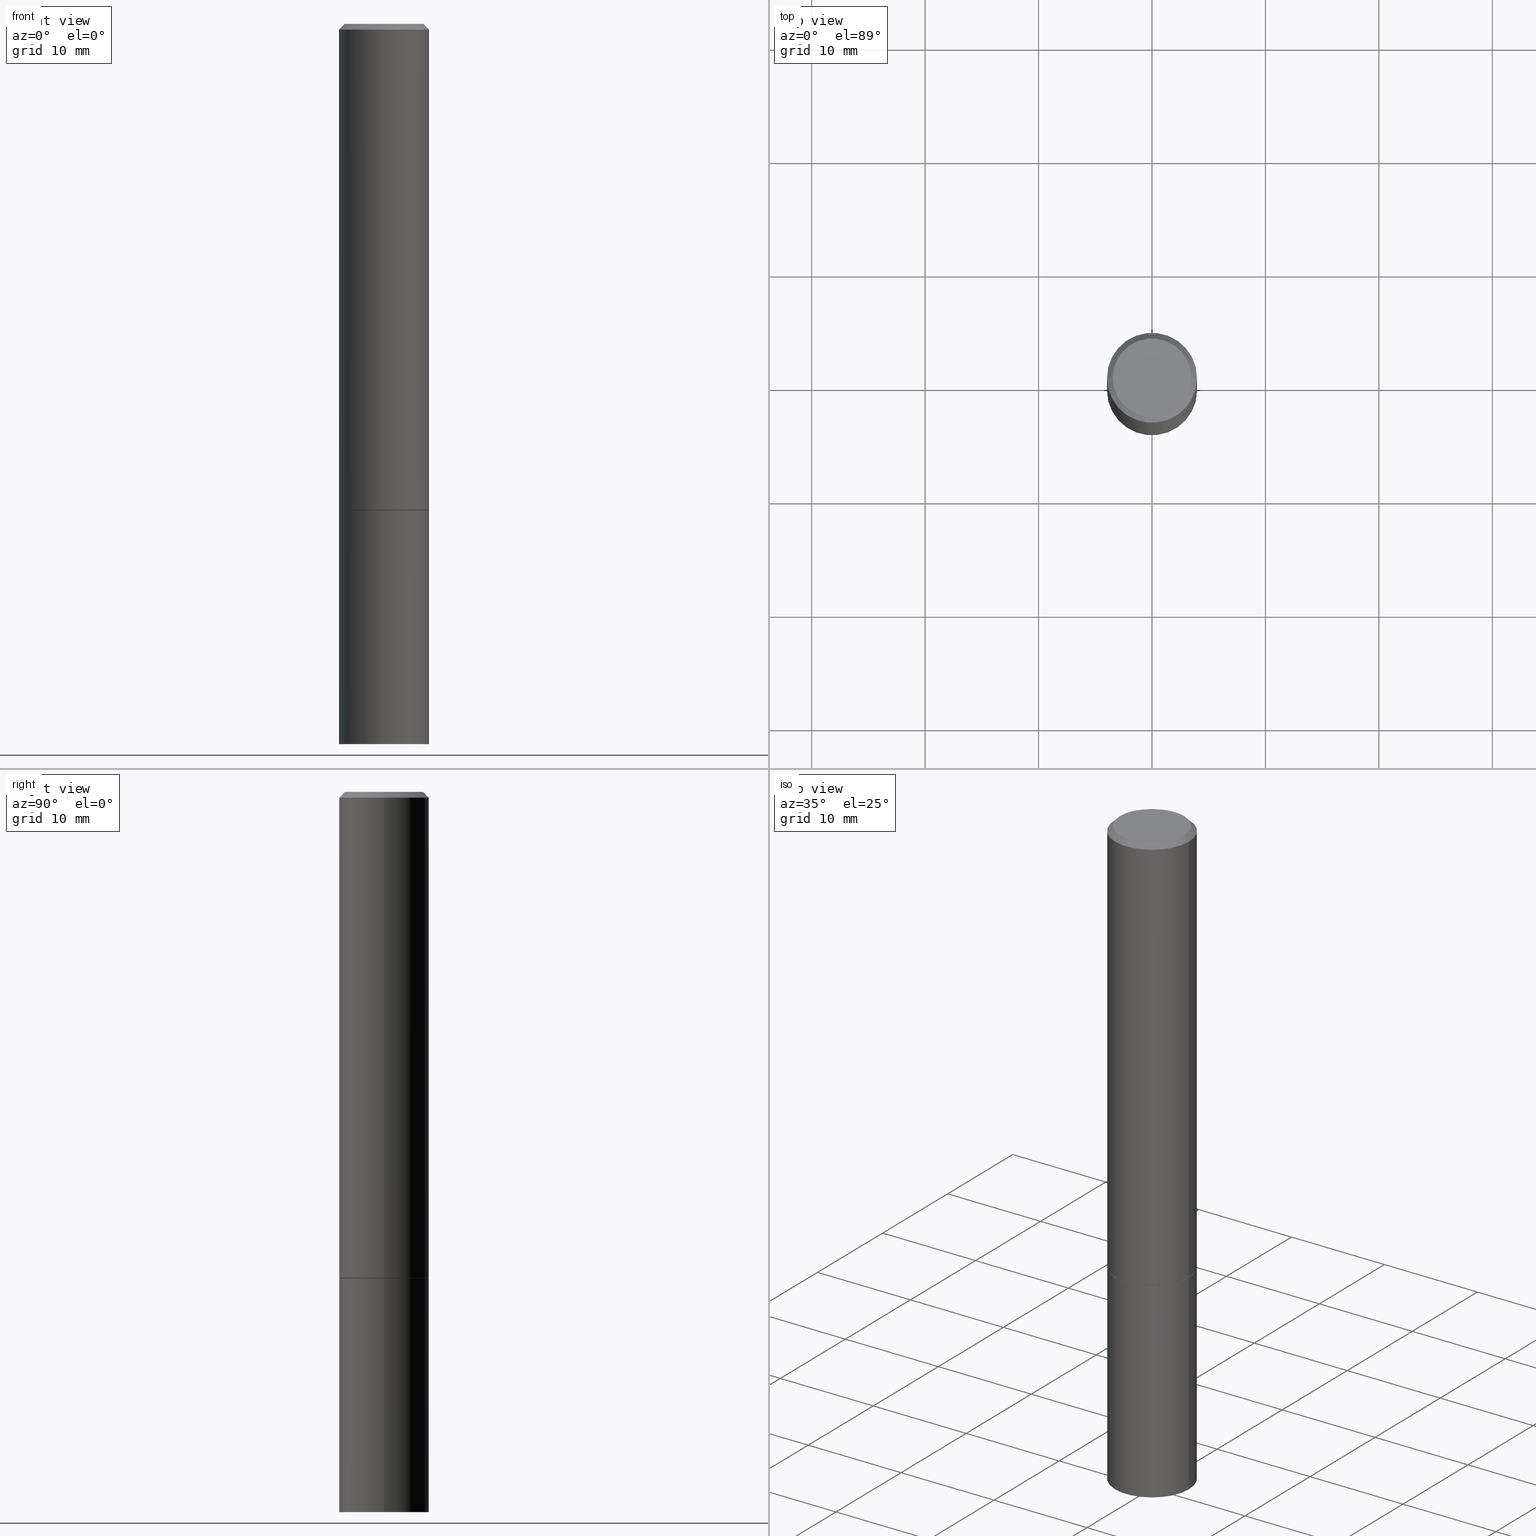
[diagram: canonical four-view strip — front | top / right | iso, engineering-drawing reading convention]
A machine part, canonical four-view strip (front | top / right | iso — engineering-drawing reading convention). The complete STEP part file that produces these views, byte-faithful:
ISO-10303-21;
HEADER;
FILE_DESCRIPTION (( 'STEP AP203' ),
    '1' );
FILE_NAME ('91284.STEP',
    '2024-03-01T04:50:10',
    ( '' ),
    ( '' ),
    'SwSTEP 2.0',
    'SolidWorks 2023',
    '' );
FILE_SCHEMA (( 'CONFIG_CONTROL_DESIGN' ));
ENDSEC;

DATA;
#1 = APPROVAL_ROLE ( '' ) ;
#2 = VECTOR ( 'NONE', #53, 39.37007874015748854 ) ;
#3 = DIRECTION ( 'NONE',  ( 0.000000000000000000, 0.000000000000000000, 1.000000000000000000 ) ) ;
#4 =( NAMED_UNIT ( * ) SI_UNIT ( $, .STERADIAN. ) SOLID_ANGLE_UNIT ( ) );
#5 = FACE_OUTER_BOUND ( 'NONE', #273, .T. ) ;
#6 = DIRECTION ( 'NONE',  ( -2.445468806185136597E-29, 3.491481338843145583E-15, 1.000000000000000000 ) ) ;
#7 = ORIENTED_EDGE ( 'NONE', *, *, #207, .F. ) ;
#8 = PRODUCT_DEFINITION ( 'UNKNOWN', '', #352, #78 ) ;
#9 = DIRECTION ( 'NONE',  ( -2.445468806185136597E-29, 3.491481338843145583E-15, 1.000000000000000000 ) ) ;
#10 = CARTESIAN_POINT ( 'NONE',  ( -0.1562500000000000000, -6.200938898912389918E-15, -2.500000000000000000 ) ) ;
#11 = AXIS2_PLACEMENT_3D ( 'NONE', #106, #108, #259 ) ;
#12 = DIRECTION ( 'NONE',  ( 1.000000000000000000, -6.982962677686268288E-15, 0.000000000000000000 ) ) ;
#13 = VERTEX_POINT ( 'NONE', #21 ) ;
#14 = CARTESIAN_POINT ( 'NONE',  ( 0.1552499999999999991, -6.977725455678023499E-15, -1.688000000000000167 ) ) ;
#15 = ORIENTED_EDGE ( 'NONE', *, *, #232, .F. ) ;
#16 = CYLINDRICAL_SURFACE ( 'NONE', #57, 0.1562499999999999445 ) ;
#17 = AXIS2_PLACEMENT_3D ( 'NONE', #73, #187, #119 ) ;
#18 = AXIS2_PLACEMENT_3D ( 'NONE', #309, #100, #52 ) ;
#19 = ORIENTED_EDGE ( 'NONE', *, *, #311, .T. ) ;
#20 = DIRECTION ( 'NONE',  ( -2.445468806185136597E-29, 3.491481338843145583E-15, 1.000000000000000000 ) ) ;
#21 = CARTESIAN_POINT ( 'NONE',  ( -0.1552499999999999991, -4.785204448351452406E-15, -1.688000000000000167 ) ) ;
#22 = ADVANCED_FACE ( 'NONE', ( #44 ), #329, .T. ) ;
#23 = DIRECTION ( 'NONE',  ( 1.000000000000000000, -6.982962677686265133E-15, 0.000000000000000000 ) ) ;
#24 = AXIS2_PLACEMENT_3D ( 'NONE', #362, #332, #274 ) ;
#25 = PERSON_AND_ORGANIZATION_ROLE ( 'creator' ) ;
#26 = APPROVAL_ROLE ( '' ) ;
#27 = PERSON_AND_ORGANIZATION ( #215, #320 ) ;
#28 = CC_DESIGN_APPROVAL ( #172, ( #352 ) ) ;
#29 =( CONVERSION_BASED_UNIT ( 'INCH', #261 ) LENGTH_UNIT ( ) NAMED_UNIT ( #143 ) );
#30 = EDGE_CURVE ( 'NONE', #277, #213, #68, .T. ) ;
#31 = PERSON_AND_ORGANIZATION ( #215, #320 ) ;
#32 = EDGE_LOOP ( 'NONE', ( #71, #185 ) ) ;
#33 = VECTOR ( 'NONE', #321, 39.37007874015748143 ) ;
#34 = PLANE ( 'NONE',  #86 ) ;
#35 = VERTEX_POINT ( 'NONE', #42 ) ;
#36 = EDGE_CURVE ( 'NONE', #148, #159, #39, .T. ) ;
#37 = DIRECTION ( 'NONE',  ( -2.445468806185136597E-29, 3.491481338843145583E-15, 1.000000000000000000 ) ) ;
#38 = FACE_OUTER_BOUND ( 'NONE', #326, .T. ) ;
#39 = CIRCLE ( 'NONE', #335, 0.1562500000000000000 ) ;
#40 = ADVANCED_FACE ( 'NONE', ( #5 ), #239, .F. ) ;
#41 = AXIS2_PLACEMENT_3D ( 'NONE', #364, #72, #74 ) ;
#42 = CARTESIAN_POINT ( 'NONE',  ( -0.1562500000000000000, -1.869756298077466803E-15, -1.687000000000000055 ) ) ;
#43 = LOCAL_TIME ( 23, 50, 10.00000000000000000, #58 ) ;
#44 = FACE_OUTER_BOUND ( 'NONE', #162, .T. ) ;
#45 = CARTESIAN_POINT ( 'NONE',  ( 4.890937612370281041E-31, -6.982962677686302702E-17, -0.02000000000000003511 ) ) ;
#46 = EDGE_LOOP ( 'NONE', ( #127, #48, #157, #331 ) ) ;
#47 = DIRECTION ( 'NONE',  ( -2.445468806185136597E-29, 3.491481338843145583E-15, 1.000000000000000000 ) ) ;
#48 = ORIENTED_EDGE ( 'NONE', *, *, #238, .T. ) ;
#49 = FACE_OUTER_BOUND ( 'NONE', #359, .T. ) ;
#50 = AXIS2_PLACEMENT_3D ( 'NONE', #303, #47, #23 ) ;
#51 = EDGE_LOOP ( 'NONE', ( #300, #219 ) ) ;
#52 = DIRECTION ( 'NONE',  ( 1.000000000000000000, -6.982962677686266711E-15, 4.876176775795935232E-29 ) ) ;
#53 = DIRECTION ( 'NONE',  ( -0.7071067811865232589, 7.493145998870265808E-15, 0.7071067811865715536 ) ) ;
#54 = APPROVAL_STATUS ( 'not_yet_approved' ) ;
#55 = ADVANCED_FACE ( 'NONE', ( #38 ), #34, .F. ) ;
#56 = CIRCLE ( 'NONE', #166, 0.1562500000000000000 ) ;
#57 = AXIS2_PLACEMENT_3D ( 'NONE', #279, #20, #224 ) ;
#58 = COORDINATED_UNIVERSAL_TIME_OFFSET ( 5, 0, .BEHIND. ) ;
#59 = CALENDAR_DATE ( 2024, 29, 2 ) ;
#60 = PERSON_AND_ORGANIZATION_ROLE ( 'classification_officer' ) ;
#61 = AXIS2_PLACEMENT_3D ( 'NONE', #121, #240, #350 ) ;
#62 = CIRCLE ( 'NONE', #208, 0.1562500000000000000 ) ;
#63 = CARTESIAN_POINT ( 'NONE',  ( 0.1562499999999999445, -1.091087918388478779E-15, 7.619026212181146173E-30 ) ) ;
#64 = EDGE_CURVE ( 'NONE', #159, #148, #56, .T. ) ;
#65 = EDGE_LOOP ( 'NONE', ( #252, #349, #280, #254 ) ) ;
#66 = DIRECTION ( 'NONE',  ( -2.445468806185136597E-29, 3.491481338843145583E-15, 1.000000000000000000 ) ) ;
#67 = CARTESIAN_POINT ( 'NONE',  ( 4.127951344840510809E-29, -5.893620499967230340E-15, -1.688000000000000167 ) ) ;
#68 = LINE ( 'NONE', #236, #283 ) ;
#69 = CIRCLE ( 'NONE', #284, 0.1552499999999999991 ) ;
#70 = CARTESIAN_POINT ( 'NONE',  ( 6.113672015462842613E-29, -8.728703347107864943E-15, -2.500000000000000000 ) ) ;
#71 = ORIENTED_EDGE ( 'NONE', *, *, #207, .T. ) ;
#72 = DIRECTION ( 'NONE',  ( 2.445468806185136597E-29, -3.491481338843145583E-15, -1.000000000000000000 ) ) ;
#73 = CARTESIAN_POINT ( 'NONE',  ( 0.000000000000000000, 0.000000000000000000, 0.000000000000000000 ) ) ;
#74 = DIRECTION ( 'NONE',  ( -1.000000000000000000, 6.982962677686267499E-15, 0.000000000000000000 ) ) ;
#75 = EDGE_CURVE ( 'NONE', #155, #131, #129, .T. ) ;
#76 = ORIENTED_EDGE ( 'NONE', *, *, #197, .T. ) ;
#77 = FACE_OUTER_BOUND ( 'NONE', #307, .T. ) ;
#78 = DESIGN_CONTEXT ( 'detailed design', #241, 'design' ) ;
#79 = VECTOR ( 'NONE', #272, 39.37007874015748143 ) ;
#80 = ORIENTED_EDGE ( 'NONE', *, *, #136, .F. ) ;
#81 = PLANE ( 'NONE',  #24 ) ;
#82 = APPROVAL_DATE_TIME ( #291, #172 ) ;
#83 = CALENDAR_DATE ( 2024, 29, 2 ) ;
#84 = EDGE_CURVE ( 'NONE', #35, #302, #243, .T. ) ;
#85 = CALENDAR_DATE ( 2024, 29, 2 ) ;
#86 = AXIS2_PLACEMENT_3D ( 'NONE', #301, #124, #212 ) ;
#87 = VECTOR ( 'NONE', #130, 39.37007874015748854 ) ;
#88 = PERSON_AND_ORGANIZATION ( #215, #320 ) ;
#89 = VERTEX_POINT ( 'NONE', #184 ) ;
#90 = CC_DESIGN_PERSON_AND_ORGANIZATION_ASSIGNMENT ( #313, #60, ( #290 ) ) ;
#91 = CARTESIAN_POINT ( 'NONE',  ( 0.000000000000000000, 0.000000000000000000, 0.000000000000000000 ) ) ;
#92 = CARTESIAN_POINT ( 'NONE',  ( 4.125505876034325766E-29, -5.890129018628387333E-15, -1.687000000000000055 ) ) ;
#93 = LOCAL_TIME ( 23, 50, 10.00000000000000000, #140 ) ;
#94 = LINE ( 'NONE', #323, #202 ) ;
#95 = CC_DESIGN_DATE_AND_TIME_ASSIGNMENT ( #344, #169, ( #290 ) ) ;
#96 = CARTESIAN_POINT ( 'NONE',  ( 0.000000000000000000, 0.000000000000000000, 0.000000000000000000 ) ) ;
#97 = CARTESIAN_POINT ( 'NONE',  ( 0.1562499999999998335, -1.141782438928663724E-15, -0.02000000000000003511 ) ) ;
#98 = ORIENTED_EDGE ( 'NONE', *, *, #64, .T. ) ;
#99 = AXIS2_PLACEMENT_3D ( 'NONE', #126, #281, #135 ) ;
#100 = DIRECTION ( 'NONE',  ( -2.445468806185136597E-29, 3.491481338843145583E-15, 1.000000000000000000 ) ) ;
#101 = ORIENTED_EDGE ( 'NONE', *, *, #304, .T. ) ;
#102 = CARTESIAN_POINT ( 'NONE',  ( 1.091087918388520392E-15, 0.1562499999999940881, -1.688000000000000611 ) ) ;
#103 = ORIENTED_EDGE ( 'NONE', *, *, #84, .T. ) ;
#104 = PLANE ( 'NONE',  #138 ) ;
#105 = ORIENTED_EDGE ( 'NONE', *, *, #150, .T. ) ;
#106 = CARTESIAN_POINT ( 'NONE',  ( 4.125505876034325766E-29, -5.890129018628387333E-15, -1.687000000000000055 ) ) ;
#107 = APPROVAL_PERSON_ORGANIZATION ( #116, #172, #229 ) ;
#108 = DIRECTION ( 'NONE',  ( -2.445468806185136597E-29, 3.491481338843145583E-15, 1.000000000000000000 ) ) ;
#109 = PERSON_AND_ORGANIZATION ( #215, #320 ) ;
#110 = MANIFOLD_SOLID_BREP ( 'Body-Move/Copy2[1]', #190 ) ;
#111 = PERSON_AND_ORGANIZATION_ROLE ( 'design_owner' ) ;
#112 = CIRCLE ( 'NONE', #11, 0.1562500000000000000 ) ;
#113 = MECHANICAL_CONTEXT ( 'NONE', #327, 'mechanical' ) ;
#114 = APPROVAL ( #54, 'UNSPECIFIED' ) ;
#115 = PRODUCT ( '91284', '91284', '', ( #113 ) ) ;
#116 = PERSON_AND_ORGANIZATION ( #215, #320 ) ;
#117 = SECURITY_CLASSIFICATION_LEVEL ( 'unclassified' ) ;
#118 = CC_DESIGN_PERSON_AND_ORGANIZATION_ASSIGNMENT ( #201, #316, ( #352 ) ) ;
#119 = DIRECTION ( 'NONE',  ( 1.000000000000000000, -6.982962677686266711E-15, 4.876176775795935232E-29 ) ) ;
#120 = CARTESIAN_POINT ( 'NONE',  ( 4.127951344840510809E-29, -5.893620499967230340E-15, -1.688000000000000167 ) ) ;
#121 = CARTESIAN_POINT ( 'NONE',  ( 4.127951344840510809E-29, -5.893620499967230340E-15, -1.688000000000000167 ) ) ;
#122 = AXIS2_PLACEMENT_3D ( 'NONE', #92, #147, #206 ) ;
#123 = DIRECTION ( 'NONE',  ( -2.445468806185136877E-29, 3.491481338843145188E-15, 1.000000000000000000 ) ) ;
#124 = DIRECTION ( 'NONE',  ( -2.438088387897960049E-29, 3.491481338843145188E-15, 1.000000000000000000 ) ) ;
#125 = ORIENTED_EDGE ( 'NONE', *, *, #211, .T. ) ;
#126 = CARTESIAN_POINT ( 'NONE',  ( 4.127951344840510809E-29, -5.893620499967230340E-15, -1.688000000000000167 ) ) ;
#127 = ORIENTED_EDGE ( 'NONE', *, *, #232, .T. ) ;
#128 = EDGE_CURVE ( 'NONE', #277, #247, #289, .T. ) ;
#129 = CIRCLE ( 'NONE', #230, 0.1562500000000000000 ) ;
#130 = DIRECTION ( 'NONE',  ( 0.7071067811865232589, -2.468850131082003836E-15, 0.7071067811865715536 ) ) ;
#131 = VERTEX_POINT ( 'NONE', #180 ) ;
#132 = DIRECTION ( 'NONE',  ( 1.000000000000000000, -6.982962677686266711E-15, 4.876176775795936353E-29 ) ) ;
#133 = UNCERTAINTY_MEASURE_WITH_UNIT (LENGTH_MEASURE( 1.000000000000000082E-05 ), #29, 'distance_accuracy_value', 'NONE');
#134 = ORIENTED_EDGE ( 'NONE', *, *, #30, .F. ) ;
#135 = DIRECTION ( 'NONE',  ( 1.000000000000000000, -6.982962677686268288E-15, 0.000000000000000000 ) ) ;
#136 = EDGE_CURVE ( 'NONE', #159, #155, #204, .T. ) ;
#137 = DIRECTION ( 'NONE',  ( -1.000000000000000000, 6.982962677686265922E-15, -4.876176775795935793E-29 ) ) ;
#138 = AXIS2_PLACEMENT_3D ( 'NONE', #102, #216, #137 ) ;
#139 = EDGE_CURVE ( 'NONE', #302, #89, #246, .T. ) ;
#140 = COORDINATED_UNIVERSAL_TIME_OFFSET ( 5, 0, .BEHIND. ) ;
#141 = LOCAL_TIME ( 23, 50, 10.00000000000000000, #286 ) ;
#142 = DATE_AND_TIME ( #59, #285 ) ;
#143 = DIMENSIONAL_EXPONENTS ( 1.000000000000000000, 0.000000000000000000, 0.000000000000000000, 0.000000000000000000, 0.000000000000000000, 0.000000000000000000, 0.000000000000000000 ) ;
#144 = DATE_TIME_ROLE ( 'creation_date' ) ;
#145 = DIRECTION ( 'NONE',  ( -0.7071067811865467956, 2.468850131082249172E-15, -0.7071067811865482389 ) ) ;
#146 = AXIS2_PLACEMENT_3D ( 'NONE', #167, #3, #340 ) ;
#147 = DIRECTION ( 'NONE',  ( -2.445468806185136597E-29, 3.491481338843145583E-15, 1.000000000000000000 ) ) ;
#148 = VERTEX_POINT ( 'NONE', #270 ) ;
#149 = DIRECTION ( 'NONE',  ( -2.445468806185136597E-29, 3.491481338843145583E-15, 1.000000000000000000 ) ) ;
#150 = EDGE_CURVE ( 'NONE', #217, #13, #69, .T. ) ;
#151 = CARTESIAN_POINT ( 'NONE',  ( 6.113672015462842613E-29, -8.728703347107864943E-15, -2.500000000000000000 ) ) ;
#152 = CONICAL_SURFACE ( 'NONE', #250, 0.1562499999999998335, 0.7853981633974472798 ) ;
#153 = APPROVAL_PERSON_ORGANIZATION ( #27, #114, #26 ) ;
#154 = DIRECTION ( 'NONE',  ( -1.000000000000000000, 6.982962677686265922E-15, -4.876176775795935793E-29 ) ) ;
#155 = VERTEX_POINT ( 'NONE', #210 ) ;
#156 = FACE_OUTER_BOUND ( 'NONE', #51, .T. ) ;
#157 = ORIENTED_EDGE ( 'NONE', *, *, #322, .F. ) ;
#158 = DIRECTION ( 'NONE',  ( 1.000000000000000000, -6.982962677686265133E-15, 0.000000000000000000 ) ) ;
#159 = VERTEX_POINT ( 'NONE', #10 ) ;
#160 = APPROVAL_PERSON_ORGANIZATION ( #31, #296, #1 ) ;
#161 = CARTESIAN_POINT ( 'NONE',  ( -0.1362499999999998435, 9.863434782231838318E-16, -6.775751096333131476E-30 ) ) ;
#162 = EDGE_LOOP ( 'NONE', ( #193, #103, #203, #173 ) ) ;
#163 = ADVANCED_FACE ( 'NONE', ( #177 ), #244, .T. ) ;
#164 = FACE_OUTER_BOUND ( 'NONE', #318, .T. ) ;
#165 = DIRECTION ( 'NONE',  ( -2.445468806185136597E-29, 3.491481338843145583E-15, 1.000000000000000000 ) ) ;
#166 = AXIS2_PLACEMENT_3D ( 'NONE', #151, #6, #266 ) ;
#167 = CARTESIAN_POINT ( 'NONE',  ( 0.000000000000000000, 0.000000000000000000, 0.000000000000000000 ) ) ;
#168 = APPROVAL_DATE_TIME ( #142, #114 ) ;
#169 = DATE_TIME_ROLE ( 'classification_date' ) ;
#170 = CIRCLE ( 'NONE', #223, 0.1562499999999998335 ) ;
#171 = DATE_AND_TIME ( #85, #93 ) ;
#172 = APPROVAL ( #199, 'UNSPECIFIED' ) ;
#173 = ORIENTED_EDGE ( 'NONE', *, *, #351, .F. ) ;
#174 = DIRECTION ( 'NONE',  ( -2.445468806185136597E-29, 3.491481338843145583E-15, 1.000000000000000000 ) ) ;
#175 = CONICAL_SURFACE ( 'NONE', #61, 0.1552499999999999991, 0.7853981633974141952 ) ;
#176 = CC_DESIGN_APPROVAL ( #114, ( #290 ) ) ;
#177 = FACE_OUTER_BOUND ( 'NONE', #310, .T. ) ;
#178 = EDGE_CURVE ( 'NONE', #13, #217, #299, .T. ) ;
#179 = DIRECTION ( 'NONE',  ( 1.000000000000000000, -6.982962677686269077E-15, 0.000000000000000000 ) ) ;
#180 = CARTESIAN_POINT ( 'NONE',  ( 0.1562500000000000000, -6.984708418355709513E-15, -1.688000000000000167 ) ) ;
#181 = ORIENTED_EDGE ( 'NONE', *, *, #84, .F. ) ;
#182 = VECTOR ( 'NONE', #186, 39.37007874015748143 ) ;
#183 = ADVANCED_FACE ( 'NONE', ( #297 ), #175, .T. ) ;
#184 = CARTESIAN_POINT ( 'NONE',  ( 0.1562499999999998335, -1.141782438928663724E-15, -0.02000000000000003511 ) ) ;
#185 = ORIENTED_EDGE ( 'NONE', *, *, #75, .T. ) ;
#186 = DIRECTION ( 'NONE',  ( -2.445468806185136877E-29, 3.491481338843145188E-15, 1.000000000000000000 ) ) ;
#187 = DIRECTION ( 'NONE',  ( -2.445468806185136597E-29, 3.491481338843145583E-15, 1.000000000000000000 ) ) ;
#188 = DIRECTION ( 'NONE',  ( 2.445468806185136597E-29, -3.491481338843145583E-15, -1.000000000000000000 ) ) ;
#189 = ORIENTED_EDGE ( 'NONE', *, *, #200, .T. ) ;
#190 = CLOSED_SHELL ( 'NONE', ( #288, #269, #226, #163 ) ) ;
#191 = LOCAL_TIME ( 23, 50, 10.00000000000000000, #227 ) ;
#192 = DIRECTION ( 'NONE',  ( -2.445468806185136597E-29, 3.491481338843145583E-15, 1.000000000000000000 ) ) ;
#193 = ORIENTED_EDGE ( 'NONE', *, *, #238, .F. ) ;
#194 = CC_DESIGN_DATE_AND_TIME_ASSIGNMENT ( #196, #144, ( #8 ) ) ;
#195 = CARTESIAN_POINT ( 'NONE',  ( -0.1562499999999998335, 1.021258291611615086E-15, -0.02000000000000003511 ) ) ;
#196 = DATE_AND_TIME ( #83, #141 ) ;
#197 = EDGE_CURVE ( 'NONE', #148, #131, #94, .T. ) ;
#198 = CALENDAR_DATE ( 2024, 29, 2 ) ;
#199 = APPROVAL_STATUS ( 'not_yet_approved' ) ;
#200 = EDGE_CURVE ( 'NONE', #247, #89, #354, .T. ) ;
#201 = PERSON_AND_ORGANIZATION ( #215, #320 ) ;
#202 = VECTOR ( 'NONE', #298, 39.37007874015748143 ) ;
#203 = ORIENTED_EDGE ( 'NONE', *, *, #139, .T. ) ;
#204 = LINE ( 'NONE', #317, #79 ) ;
#205 = ORIENTED_EDGE ( 'NONE', *, *, #311, .F. ) ;
#206 = DIRECTION ( 'NONE',  ( 1.000000000000000000, -6.982962677686269077E-15, 0.000000000000000000 ) ) ;
#207 = EDGE_CURVE ( 'NONE', #131, #155, #62, .T. ) ;
#208 = AXIS2_PLACEMENT_3D ( 'NONE', #324, #353, #336 ) ;
#209 = DIRECTION ( 'NONE',  ( 1.000000000000000000, -6.982962677686268288E-15, 0.000000000000000000 ) ) ;
#210 = CARTESIAN_POINT ( 'NONE',  ( -0.1562500000000000000, -6.200938898912389918E-15, -1.688000000000000167 ) ) ;
#211 = EDGE_CURVE ( 'NONE', #13, #35, #251, .T. ) ;
#212 = DIRECTION ( 'NONE',  ( 1.000000000000000000, -6.982962677686265922E-15, 4.876176775795935793E-29 ) ) ;
#213 = VERTEX_POINT ( 'NONE', #195 ) ;
#214 = AXIS2_PLACEMENT_3D ( 'NONE', #348, #346, #154 ) ;
#215 = PERSON ( 'UNSPECIFIED', 'UNSPECIFIED', 'UNSPECIFIED', ('UNSPECIFIED'), ('UNSPECIFIED'), ('UNSPECIFIED') ) ;
#216 = DIRECTION ( 'NONE',  ( 2.438088387897960049E-29, -3.491481338843145188E-15, -1.000000000000000000 ) ) ;
#217 = VERTEX_POINT ( 'NONE', #14 ) ;
#218 = CARTESIAN_POINT ( 'NONE',  ( 0.1362499999999998435, -1.038262645562516941E-15, 6.957025900226688069E-30 ) ) ;
#219 = ORIENTED_EDGE ( 'NONE', *, *, #64, .F. ) ;
#220 = DIRECTION ( 'NONE',  ( -1.000000000000000000, 6.982962677686267499E-15, 0.000000000000000000 ) ) ;
#221 = ADVANCED_FACE ( 'NONE', ( #366 ), #152, .T. ) ;
#222 = ORIENTED_EDGE ( 'NONE', *, *, #211, .F. ) ;
#223 = AXIS2_PLACEMENT_3D ( 'NONE', #255, #165, #158 ) ;
#224 = DIRECTION ( 'NONE',  ( 1.000000000000000000, -6.982962677686266711E-15, 4.876176775795935232E-29 ) ) ;
#225 = LINE ( 'NONE', #337, #182 ) ;
#226 = ADVANCED_FACE ( 'NONE', ( #330 ), #104, .F. ) ;
#227 = COORDINATED_UNIVERSAL_TIME_OFFSET ( 5, 0, .BEHIND. ) ;
#228 = MANIFOLD_SOLID_BREP ( 'Body-Move/Copy2[2]', #242 ) ;
#229 = APPROVAL_ROLE ( '' ) ;
#230 = AXIS2_PLACEMENT_3D ( 'NONE', #120, #37, #179 ) ;
#231 = APPLICATION_PROTOCOL_DEFINITION ( 'international standard', 'config_control_design', 1994, #241 ) ;
#232 = EDGE_CURVE ( 'NONE', #302, #35, #112, .T. ) ;
#233 = PERSON_AND_ORGANIZATION_ROLE ( 'creator' ) ;
#234 = PERSON_AND_ORGANIZATION ( #215, #320 ) ;
#235 = CONICAL_SURFACE ( 'NONE', #99, 0.1552499999999999991, 0.7853981633974141952 ) ;
#236 = CARTESIAN_POINT ( 'NONE',  ( -0.1562499999999998335, 1.021258291611615086E-15, -0.02000000000000003511 ) ) ;
#237 = ORIENTED_EDGE ( 'NONE', *, *, #178, .T. ) ;
#238 = EDGE_CURVE ( 'NONE', #35, #213, #225, .T. ) ;
#239 = PLANE ( 'NONE',  #214 ) ;
#240 = DIRECTION ( 'NONE',  ( -2.445468806185136597E-29, 3.491481338843145583E-15, 1.000000000000000000 ) ) ;
#241 = APPLICATION_CONTEXT ( 'configuration controlled 3d designs of mechanical parts and assemblies' ) ;
#242 = CLOSED_SHELL ( 'NONE', ( #278, #356, #282, #221, #22, #183, #55, #40 ) ) ;
#243 = CIRCLE ( 'NONE', #122, 0.1562500000000000000 ) ;
#244 = CYLINDRICAL_SURFACE ( 'NONE', #345, 0.1562500000000000000 ) ;
#245 = CC_DESIGN_PERSON_AND_ORGANIZATION_ASSIGNMENT ( #234, #25, ( #8 ) ) ;
#246 = LINE ( 'NONE', #63, #365 ) ;
#247 = VERTEX_POINT ( 'NONE', #218 ) ;
#248 = CYLINDRICAL_SURFACE ( 'NONE', #339, 0.1562500000000000000 ) ;
#249 = ORIENTED_EDGE ( 'NONE', *, *, #197, .F. ) ;
#250 = AXIS2_PLACEMENT_3D ( 'NONE', #45, #188, #220 ) ;
#251 = LINE ( 'NONE', #360, #2 ) ;
#252 = ORIENTED_EDGE ( 'NONE', *, *, #200, .F. ) ;
#253 = LINE ( 'NONE', #328, #87 ) ;
#254 = ORIENTED_EDGE ( 'NONE', *, *, #351, .T. ) ;
#255 = CARTESIAN_POINT ( 'NONE',  ( 4.890937612370281041E-31, -6.982962677686302702E-17, -0.02000000000000003511 ) ) ;
#256 = PRODUCT_DEFINITION_SHAPE ( 'NONE', 'NONE',  #8 ) ;
#257 = CIRCLE ( 'NONE', #18, 0.1362499999999998435 ) ;
#258 = CC_DESIGN_SECURITY_CLASSIFICATION ( #290, ( #352 ) ) ;
#259 = DIRECTION ( 'NONE',  ( 1.000000000000000000, -6.982962677686269077E-15, 0.000000000000000000 ) ) ;
#260 =( NAMED_UNIT ( * ) PLANE_ANGLE_UNIT ( ) SI_UNIT ( $, .RADIAN. ) );
#261 = LENGTH_MEASURE_WITH_UNIT ( LENGTH_MEASURE( 0.02539999999999999897 ), #312 );
#262 = AXIS2_PLACEMENT_3D ( 'NONE', #91, #265, #295 ) ;
#263 = ADVANCED_BREP_SHAPE_REPRESENTATION ( '91284', ( #110, #228, #146 ), #271 ) ;
#264 = CALENDAR_DATE ( 2024, 29, 2 ) ;
#265 = DIRECTION ( 'NONE',  ( -2.445468806185136597E-29, 3.491481338843145583E-15, 1.000000000000000000 ) ) ;
#266 = DIRECTION ( 'NONE',  ( 1.000000000000000000, -6.982962677686269077E-15, 0.000000000000000000 ) ) ;
#267 = ORIENTED_EDGE ( 'NONE', *, *, #75, .F. ) ;
#268 = DIRECTION ( 'NONE',  ( 1.000000000000000000, -6.982962677686266711E-15, 4.876176775795936353E-29 ) ) ;
#269 = ADVANCED_FACE ( 'NONE', ( #156 ), #81, .T. ) ;
#270 = CARTESIAN_POINT ( 'NONE',  ( 0.1562500000000000000, -9.819791265496344905E-15, -2.500000000000000000 ) ) ;
#271 =( GEOMETRIC_REPRESENTATION_CONTEXT ( 3 ) GLOBAL_UNCERTAINTY_ASSIGNED_CONTEXT ( ( #133 ) ) GLOBAL_UNIT_ASSIGNED_CONTEXT ( ( #29, #260, #4 ) ) REPRESENTATION_CONTEXT ( 'NONE', 'WORKASPACE' ) );
#272 = DIRECTION ( 'NONE',  ( -2.445468806185136877E-29, 3.491481338843145188E-15, 1.000000000000000000 ) ) ;
#273 = EDGE_LOOP ( 'NONE', ( #347, #101 ) ) ;
#274 = DIRECTION ( 'NONE',  ( -1.000000000000000000, 6.982962677686265922E-15, -4.876176775795935793E-29 ) ) ;
#275 = ORIENTED_EDGE ( 'NONE', *, *, #304, .F. ) ;
#276 = FACE_OUTER_BOUND ( 'NONE', #46, .T. ) ;
#277 = VERTEX_POINT ( 'NONE', #161 ) ;
#278 = ADVANCED_FACE ( 'NONE', ( #164 ), #235, .T. ) ;
#279 = CARTESIAN_POINT ( 'NONE',  ( 0.000000000000000000, 0.000000000000000000, 0.000000000000000000 ) ) ;
#280 = ORIENTED_EDGE ( 'NONE', *, *, #30, .T. ) ;
#281 = DIRECTION ( 'NONE',  ( -2.445468806185136597E-29, 3.491481338843145583E-15, 1.000000000000000000 ) ) ;
#282 = ADVANCED_FACE ( 'NONE', ( #49 ), #293, .T. ) ;
#283 = VECTOR ( 'NONE', #145, 39.37007874015748143 ) ;
#284 = AXIS2_PLACEMENT_3D ( 'NONE', #319, #66, #12 ) ;
#285 = LOCAL_TIME ( 23, 50, 10.00000000000000000, #314 ) ;
#286 = COORDINATED_UNIVERSAL_TIME_OFFSET ( 5, 0, .BEHIND. ) ;
#287 = SHAPE_DEFINITION_REPRESENTATION ( #256, #263 ) ;
#288 = ADVANCED_FACE ( 'NONE', ( #77 ), #248, .T. ) ;
#289 = CIRCLE ( 'NONE', #262, 0.1362499999999998435 ) ;
#290 = SECURITY_CLASSIFICATION ( '', '', #117 ) ;
#291 = DATE_AND_TIME ( #264, #191 ) ;
#292 = DIRECTION ( 'NONE',  ( 1.000000000000000000, -6.982962677686269077E-15, 0.000000000000000000 ) ) ;
#293 = CONICAL_SURFACE ( 'NONE', #41, 0.1562499999999998335, 0.7853981633974472798 ) ;
#294 = ORIENTED_EDGE ( 'NONE', *, *, #136, .T. ) ;
#295 = DIRECTION ( 'NONE',  ( 1.000000000000000000, -6.982962677686266711E-15, 4.876176775795935232E-29 ) ) ;
#296 = APPROVAL ( #338, 'UNSPECIFIED' ) ;
#297 = FACE_OUTER_BOUND ( 'NONE', #305, .T. ) ;
#298 = DIRECTION ( 'NONE',  ( -2.445468806185136877E-29, 3.491481338843145188E-15, 1.000000000000000000 ) ) ;
#299 = CIRCLE ( 'NONE', #358, 0.1552499999999999991 ) ;
#300 = ORIENTED_EDGE ( 'NONE', *, *, #36, .F. ) ;
#301 = CARTESIAN_POINT ( 'NONE',  ( 4.127951344840510809E-29, -5.893620499967230340E-15, -1.688000000000000167 ) ) ;
#302 = VERTEX_POINT ( 'NONE', #306 ) ;
#303 = CARTESIAN_POINT ( 'NONE',  ( 4.890937612370281041E-31, -6.982962677686302702E-17, -0.02000000000000003511 ) ) ;
#304 = EDGE_CURVE ( 'NONE', #247, #277, #257, .T. ) ;
#305 = EDGE_LOOP ( 'NONE', ( #222, #237, #19, #181 ) ) ;
#306 = CARTESIAN_POINT ( 'NONE',  ( 0.1562500000000000000, -6.981216937016866506E-15, -1.687000000000000055 ) ) ;
#307 = EDGE_LOOP ( 'NONE', ( #363, #294, #7, #249 ) ) ;
#308 = CC_DESIGN_APPROVAL ( #296, ( #8 ) ) ;
#309 = CARTESIAN_POINT ( 'NONE',  ( 0.000000000000000000, 0.000000000000000000, 0.000000000000000000 ) ) ;
#310 = EDGE_LOOP ( 'NONE', ( #80, #98, #76, #267 ) ) ;
#311 = EDGE_CURVE ( 'NONE', #217, #302, #253, .T. ) ;
#312 =( LENGTH_UNIT ( ) NAMED_UNIT ( * ) SI_UNIT ( $, .METRE. ) );
#313 = PERSON_AND_ORGANIZATION ( #215, #320 ) ;
#314 = COORDINATED_UNIVERSAL_TIME_OFFSET ( 5, 0, .BEHIND. ) ;
#315 = CC_DESIGN_PERSON_AND_ORGANIZATION_ASSIGNMENT ( #88, #233, ( #352 ) ) ;
#316 = PERSON_AND_ORGANIZATION_ROLE ( 'design_supplier' ) ;
#317 = CARTESIAN_POINT ( 'NONE',  ( -0.1562500000000000000, 1.110223024625156540E-15, -7.685836078523291160E-30 ) ) ;
#318 = EDGE_LOOP ( 'NONE', ( #105, #125, #15, #205 ) ) ;
#319 = CARTESIAN_POINT ( 'NONE',  ( 4.127951344840510809E-29, -5.893620499967230340E-15, -1.688000000000000167 ) ) ;
#320 = ORGANIZATION ( 'UNSPECIFIED', 'UNSPECIFIED', '' ) ;
#321 = DIRECTION ( 'NONE',  ( 0.7071067811865467956, -7.319954787623254468E-15, -0.7071067811865482389 ) ) ;
#322 = EDGE_CURVE ( 'NONE', #89, #213, #325, .T. ) ;
#323 = CARTESIAN_POINT ( 'NONE',  ( 0.1562500000000000000, -1.091087918388479174E-15, 7.619026212181150377E-30 ) ) ;
#324 = CARTESIAN_POINT ( 'NONE',  ( 4.127951344840510809E-29, -5.893620499967230340E-15, -1.688000000000000167 ) ) ;
#325 = CIRCLE ( 'NONE', #50, 0.1562499999999998335 ) ;
#326 = EDGE_LOOP ( 'NONE', ( #333, #355 ) ) ;
#327 = APPLICATION_CONTEXT ( 'configuration controlled 3d designs of mechanical parts and assemblies' ) ;
#328 = CARTESIAN_POINT ( 'NONE',  ( 0.1552499999999999991, -6.977725455678023499E-15, -1.688000000000000167 ) ) ;
#329 = CYLINDRICAL_SURFACE ( 'NONE', #17, 0.1562499999999999445 ) ;
#330 = FACE_OUTER_BOUND ( 'NONE', #32, .T. ) ;
#331 = ORIENTED_EDGE ( 'NONE', *, *, #139, .F. ) ;
#332 = DIRECTION ( 'NONE',  ( 2.438088387897960049E-29, -3.491481338843145188E-15, -1.000000000000000000 ) ) ;
#333 = ORIENTED_EDGE ( 'NONE', *, *, #150, .F. ) ;
#334 = PRODUCT_RELATED_PRODUCT_CATEGORY ( 'detail', '', ( #115 ) ) ;
#335 = AXIS2_PLACEMENT_3D ( 'NONE', #70, #174, #292 ) ;
#336 = DIRECTION ( 'NONE',  ( 1.000000000000000000, -6.982962677686269077E-15, 0.000000000000000000 ) ) ;
#337 = CARTESIAN_POINT ( 'NONE',  ( -0.1562499999999999445, 1.110223024625156146E-15, -7.685836078523286956E-30 ) ) ;
#338 = APPROVAL_STATUS ( 'not_yet_approved' ) ;
#339 = AXIS2_PLACEMENT_3D ( 'NONE', #357, #192, #132 ) ;
#340 = DIRECTION ( 'NONE',  ( 1.000000000000000000, 0.000000000000000000, 0.000000000000000000 ) ) ;
#341 = CC_DESIGN_PERSON_AND_ORGANIZATION_ASSIGNMENT ( #109, #111, ( #115 ) ) ;
#342 = APPROVAL_DATE_TIME ( #171, #296 ) ;
#343 = APPLICATION_PROTOCOL_DEFINITION ( 'international standard', 'config_control_design', 1994, #327 ) ;
#344 = DATE_AND_TIME ( #198, #43 ) ;
#345 = AXIS2_PLACEMENT_3D ( 'NONE', #96, #149, #268 ) ;
#346 = DIRECTION ( 'NONE',  ( 2.438088387897960049E-29, -3.491481338843145188E-15, -1.000000000000000000 ) ) ;
#347 = ORIENTED_EDGE ( 'NONE', *, *, #128, .T. ) ;
#348 = CARTESIAN_POINT ( 'NONE',  ( 9.514286648347525771E-16, 0.1362499999999998435, -4.757143324173780635E-16 ) ) ;
#349 = ORIENTED_EDGE ( 'NONE', *, *, #128, .F. ) ;
#350 = DIRECTION ( 'NONE',  ( 1.000000000000000000, -6.982962677686268288E-15, 0.000000000000000000 ) ) ;
#351 = EDGE_CURVE ( 'NONE', #213, #89, #170, .T. ) ;
#352 = PRODUCT_DEFINITION_FORMATION_WITH_SPECIFIED_SOURCE ( 'ANY', '', #115, .NOT_KNOWN. ) ;
#353 = DIRECTION ( 'NONE',  ( -2.445468806185136597E-29, 3.491481338843145583E-15, 1.000000000000000000 ) ) ;
#354 = LINE ( 'NONE', #97, #33 ) ;
#355 = ORIENTED_EDGE ( 'NONE', *, *, #178, .F. ) ;
#356 = ADVANCED_FACE ( 'NONE', ( #276 ), #16, .T. ) ;
#357 = CARTESIAN_POINT ( 'NONE',  ( 0.000000000000000000, 0.000000000000000000, 0.000000000000000000 ) ) ;
#358 = AXIS2_PLACEMENT_3D ( 'NONE', #67, #9, #209 ) ;
#359 = EDGE_LOOP ( 'NONE', ( #275, #189, #361, #134 ) ) ;
#360 = CARTESIAN_POINT ( 'NONE',  ( -0.1552499999999999991, -4.790502902699674808E-15, -1.688000000000000167 ) ) ;
#361 = ORIENTED_EDGE ( 'NONE', *, *, #322, .T. ) ;
#362 = CARTESIAN_POINT ( 'NONE',  ( 1.091087918388540310E-15, 0.1562499999999912570, -2.500000000000000444 ) ) ;
#363 = ORIENTED_EDGE ( 'NONE', *, *, #36, .T. ) ;
#364 = CARTESIAN_POINT ( 'NONE',  ( 4.890937612370281041E-31, -6.982962677686302702E-17, -0.02000000000000003511 ) ) ;
#365 = VECTOR ( 'NONE', #123, 39.37007874015748143 ) ;
#366 = FACE_OUTER_BOUND ( 'NONE', #65, .T. ) ;
ENDSEC;
END-ISO-10303-21;
